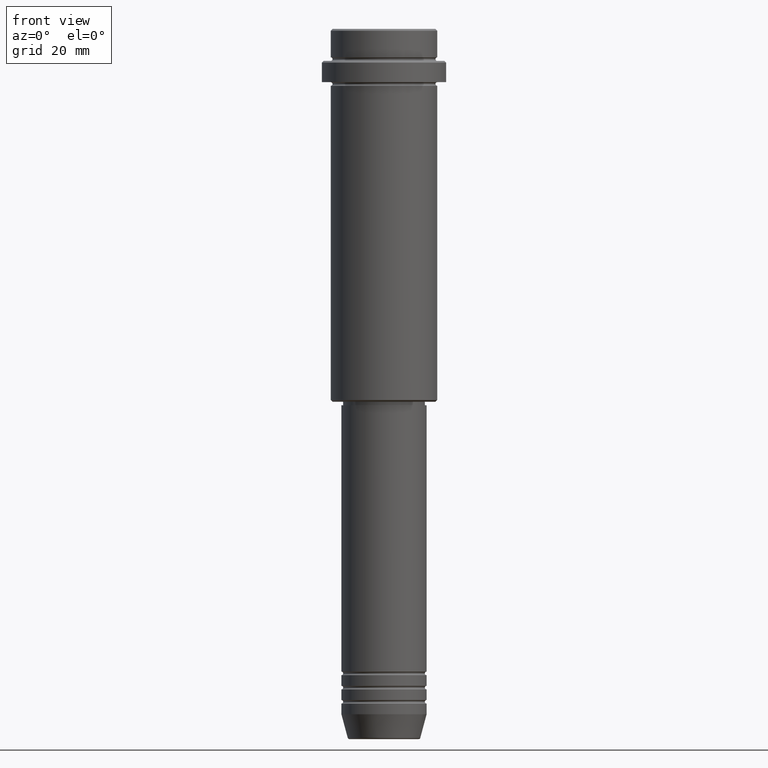
[diagram: clean part render]
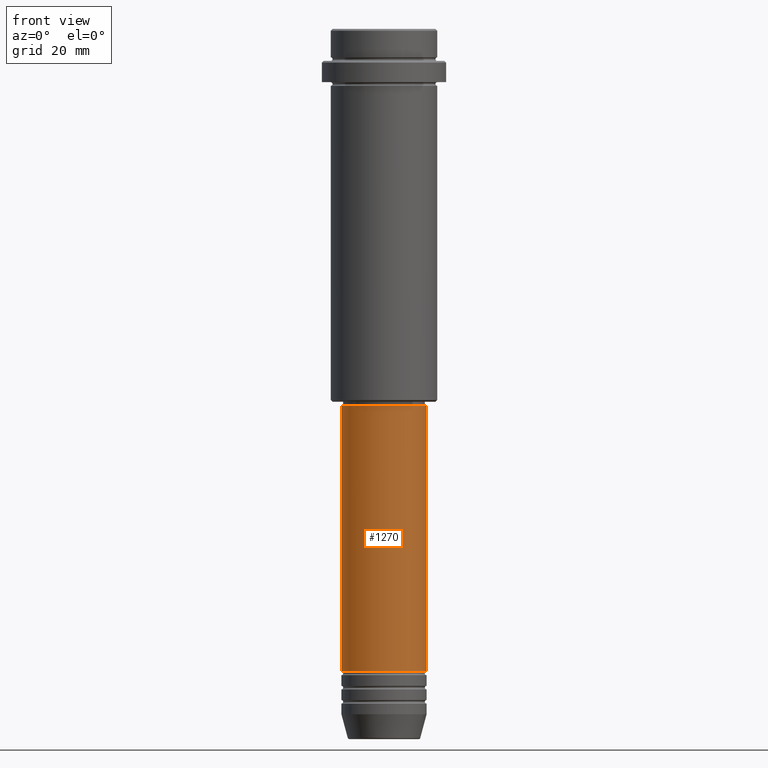
[diagram: same view with one face highlighted and labeled with its STEP entity id]
A machine part, front view. The second image highlights one B-rep face of the part: STEP entity #1270.
In plain terms, the highlighted cylindrical surface (partial cylindrical patch) has radius 12 mm, axis along (-0, -0, 1).
Its self-contained STEP definition (entity closure, byte-faithful):
#43 = CARTESIAN_POINT ( 'NONE',  ( -11.99999999999999822, 1.469576158976823750E-15, -106.0000000000000142 ) ) ;
#63 = DIRECTION ( 'NONE',  ( 1.000000000000000000, 0.000000000000000000, 0.000000000000000000 ) ) ;
#110 = EDGE_CURVE ( 'NONE', #921, #467, #1220, .T. ) ;
#118 = AXIS2_PLACEMENT_3D ( 'NONE', #833, #602, #952 ) ;
#139 = DIRECTION ( 'NONE',  ( -0.000000000000000000, -0.000000000000000000, 1.000000000000000000 ) ) ;
#157 = CYLINDRICAL_SURFACE ( 'NONE', #118, 12.00000000000000000 ) ;
#163 = FACE_OUTER_BOUND ( 'NONE', #1414, .T. ) ;
#180 = DIRECTION ( 'NONE',  ( -0.000000000000000000, -0.000000000000000000, 1.000000000000000000 ) ) ;
#238 = EDGE_CURVE ( 'NONE', #1025, #342, #835, .T. ) ;
#271 = CARTESIAN_POINT ( 'NONE',  ( 0.000000000000000000, 0.000000000000000000, -180.9999999999998863 ) ) ;
#342 = VERTEX_POINT ( 'NONE', #1008 ) ;
#416 = VECTOR ( 'NONE', #1044, 1000.000000000000000 ) ;
#435 = AXIS2_PLACEMENT_3D ( 'NONE', #711, #180, #844 ) ;
#463 = CARTESIAN_POINT ( 'NONE',  ( -12.00000000000000000, 1.469576158976823947E-15, 0.000000000000000000 ) ) ;
#467 = VERTEX_POINT ( 'NONE', #43 ) ;
#480 = CIRCLE ( 'NONE', #567, 12.00000000000000000 ) ;
#489 = CARTESIAN_POINT ( 'NONE',  ( -12.00000000000000000, 1.469576158976823947E-15, -180.9999999999998863 ) ) ;
#500 = DIRECTION ( 'NONE',  ( -0.000000000000000000, -0.000000000000000000, 1.000000000000000000 ) ) ;
#552 = EDGE_CURVE ( 'NONE', #467, #342, #1261, .T. ) ;
#567 = AXIS2_PLACEMENT_3D ( 'NONE', #271, #500, #63 ) ;
#602 = DIRECTION ( 'NONE',  ( -0.000000000000000000, -0.000000000000000000, 1.000000000000000000 ) ) ;
#704 = VECTOR ( 'NONE', #139, 1000.000000000000000 ) ;
#711 = CARTESIAN_POINT ( 'NONE',  ( 0.000000000000000000, 0.000000000000000000, -106.0000000000000142 ) ) ;
#833 = CARTESIAN_POINT ( 'NONE',  ( 0.000000000000000000, 0.000000000000000000, 0.000000000000000000 ) ) ;
#835 = LINE ( 'NONE', #1156, #416 ) ;
#844 = DIRECTION ( 'NONE',  ( 1.000000000000000000, 0.000000000000000000, 0.000000000000000000 ) ) ;
#921 = VERTEX_POINT ( 'NONE', #489 ) ;
#952 = DIRECTION ( 'NONE',  ( 1.000000000000000000, 0.000000000000000000, 0.000000000000000000 ) ) ;
#1008 = CARTESIAN_POINT ( 'NONE',  ( 11.99999999999999822, 0.000000000000000000, -106.0000000000000142 ) ) ;
#1025 = VERTEX_POINT ( 'NONE', #1277 ) ;
#1041 = ORIENTED_EDGE ( 'NONE', *, *, #552, .F. ) ;
#1044 = DIRECTION ( 'NONE',  ( -0.000000000000000000, -0.000000000000000000, 1.000000000000000000 ) ) ;
#1134 = ORIENTED_EDGE ( 'NONE', *, *, #110, .F. ) ;
#1156 = CARTESIAN_POINT ( 'NONE',  ( 12.00000000000000000, 0.000000000000000000, 0.000000000000000000 ) ) ;
#1220 = LINE ( 'NONE', #463, #704 ) ;
#1256 = ORIENTED_EDGE ( 'NONE', *, *, #1380, .T. ) ;
#1261 = CIRCLE ( 'NONE', #435, 11.99999999999999822 ) ;
#1270 = ADVANCED_FACE ( 'NONE', ( #163 ), #157, .T. ) ;
#1277 = CARTESIAN_POINT ( 'NONE',  ( 12.00000000000000000, 0.000000000000000000, -180.9999999999998863 ) ) ;
#1310 = ORIENTED_EDGE ( 'NONE', *, *, #238, .T. ) ;
#1380 = EDGE_CURVE ( 'NONE', #921, #1025, #480, .T. ) ;
#1414 = EDGE_LOOP ( 'NONE', ( #1134, #1256, #1310, #1041 ) ) ;